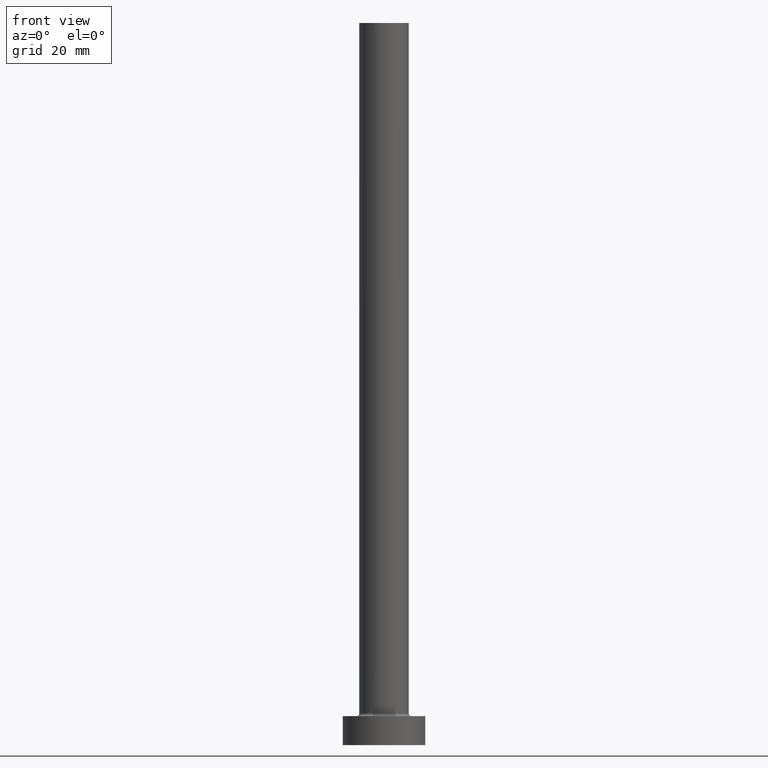
[diagram: clean part render]
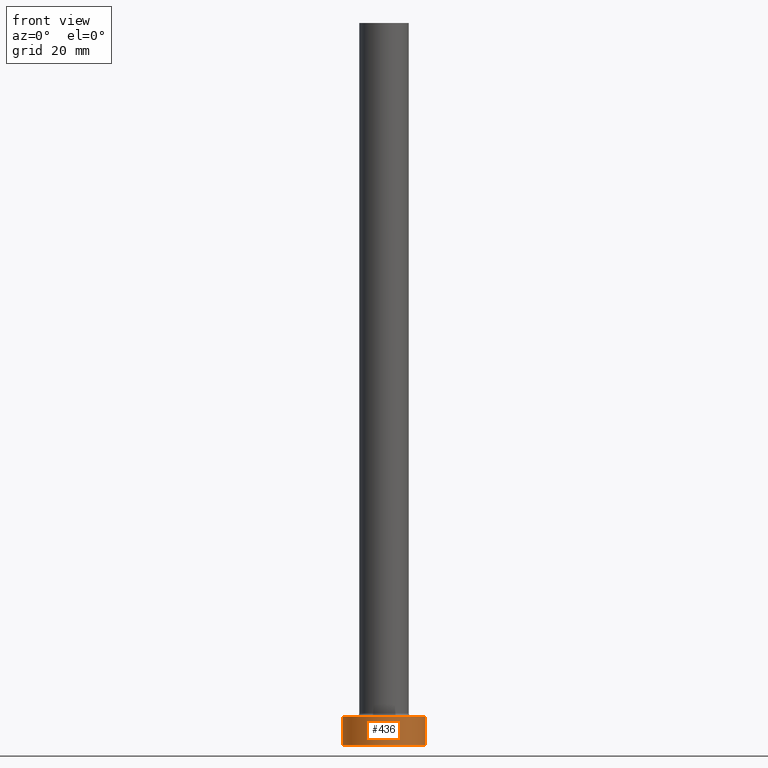
[diagram: same view with one face highlighted and labeled with its STEP entity id]
A machine part, front view. The second image highlights one B-rep face of the part: STEP entity #436.
In plain terms, the highlighted cylindrical surface (partial cylindrical patch) has radius 10 mm, axis along (-0, -0, -1).
Its self-contained STEP definition (entity closure, byte-faithful):
#3 = EDGE_CURVE ( 'NONE', #45, #122, #379, .T. ) ;
#12 = DIRECTION ( 'NONE',  ( -0.000000000000000000, -0.000000000000000000, -1.000000000000000000 ) ) ;
#25 = EDGE_LOOP ( 'NONE', ( #192, #69, #124, #283 ) ) ;
#37 = CARTESIAN_POINT ( 'NONE',  ( 10.00000000000000000, 1.224646799147353256E-15, 0.000000000000000000 ) ) ;
#38 = DIRECTION ( 'NONE',  ( -0.000000000000000000, -0.000000000000000000, -1.000000000000000000 ) ) ;
#40 = DIRECTION ( 'NONE',  ( 0.000000000000000000, 0.000000000000000000, 1.000000000000000000 ) ) ;
#45 = VERTEX_POINT ( 'NONE', #267 ) ;
#62 = VECTOR ( 'NONE', #12, 1000.000000000000000 ) ;
#63 = DIRECTION ( 'NONE',  ( 1.000000000000000000, 0.000000000000000000, 0.000000000000000000 ) ) ;
#66 = DIRECTION ( 'NONE',  ( -1.000000000000000000, 0.000000000000000000, 0.000000000000000000 ) ) ;
#69 = ORIENTED_EDGE ( 'NONE', *, *, #407, .F. ) ;
#81 = CARTESIAN_POINT ( 'NONE',  ( 10.00000000000000000, 1.224646799147353256E-15, 7.000000000000000000 ) ) ;
#104 = CARTESIAN_POINT ( 'NONE',  ( 0.000000000000000000, 0.000000000000000000, 7.000000000000000000 ) ) ;
#109 = AXIS2_PLACEMENT_3D ( 'NONE', #104, #38, #66 ) ;
#121 = VERTEX_POINT ( 'NONE', #37 ) ;
#122 = VERTEX_POINT ( 'NONE', #168 ) ;
#124 = ORIENTED_EDGE ( 'NONE', *, *, #3, .T. ) ;
#133 = EDGE_CURVE ( 'NONE', #122, #121, #191, .T. ) ;
#141 = VECTOR ( 'NONE', #236, 1000.000000000000000 ) ;
#168 = CARTESIAN_POINT ( 'NONE',  ( -10.00000000000000000, 0.000000000000000000, 0.000000000000000000 ) ) ;
#191 = CIRCLE ( 'NONE', #230, 10.00000000000000000 ) ;
#192 = ORIENTED_EDGE ( 'NONE', *, *, #364, .F. ) ;
#202 = CARTESIAN_POINT ( 'NONE',  ( 0.000000000000000000, 0.000000000000000000, 0.000000000000000000 ) ) ;
#230 = AXIS2_PLACEMENT_3D ( 'NONE', #202, #40, #314 ) ;
#232 = CIRCLE ( 'NONE', #445, 10.00000000000000000 ) ;
#235 = CARTESIAN_POINT ( 'NONE',  ( 10.00000000000000000, 1.224646799147353256E-15, 7.000000000000000000 ) ) ;
#236 = DIRECTION ( 'NONE',  ( -0.000000000000000000, -0.000000000000000000, -1.000000000000000000 ) ) ;
#237 = CYLINDRICAL_SURFACE ( 'NONE', #109, 10.00000000000000000 ) ;
#267 = CARTESIAN_POINT ( 'NONE',  ( -10.00000000000000000, 0.000000000000000000, 7.000000000000000000 ) ) ;
#268 = VERTEX_POINT ( 'NONE', #235 ) ;
#283 = ORIENTED_EDGE ( 'NONE', *, *, #133, .T. ) ;
#314 = DIRECTION ( 'NONE',  ( 1.000000000000000000, 0.000000000000000000, 0.000000000000000000 ) ) ;
#348 = CARTESIAN_POINT ( 'NONE',  ( 0.000000000000000000, 0.000000000000000000, 7.000000000000000000 ) ) ;
#364 = EDGE_CURVE ( 'NONE', #268, #121, #403, .T. ) ;
#379 = LINE ( 'NONE', #417, #141 ) ;
#403 = LINE ( 'NONE', #81, #62 ) ;
#407 = EDGE_CURVE ( 'NONE', #45, #268, #232, .T. ) ;
#417 = CARTESIAN_POINT ( 'NONE',  ( -10.00000000000000000, 0.000000000000000000, 7.000000000000000000 ) ) ;
#424 = DIRECTION ( 'NONE',  ( 0.000000000000000000, 0.000000000000000000, 1.000000000000000000 ) ) ;
#426 = FACE_OUTER_BOUND ( 'NONE', #25, .T. ) ;
#436 = ADVANCED_FACE ( 'NONE', ( #426 ), #237, .T. ) ;
#445 = AXIS2_PLACEMENT_3D ( 'NONE', #348, #424, #63 ) ;